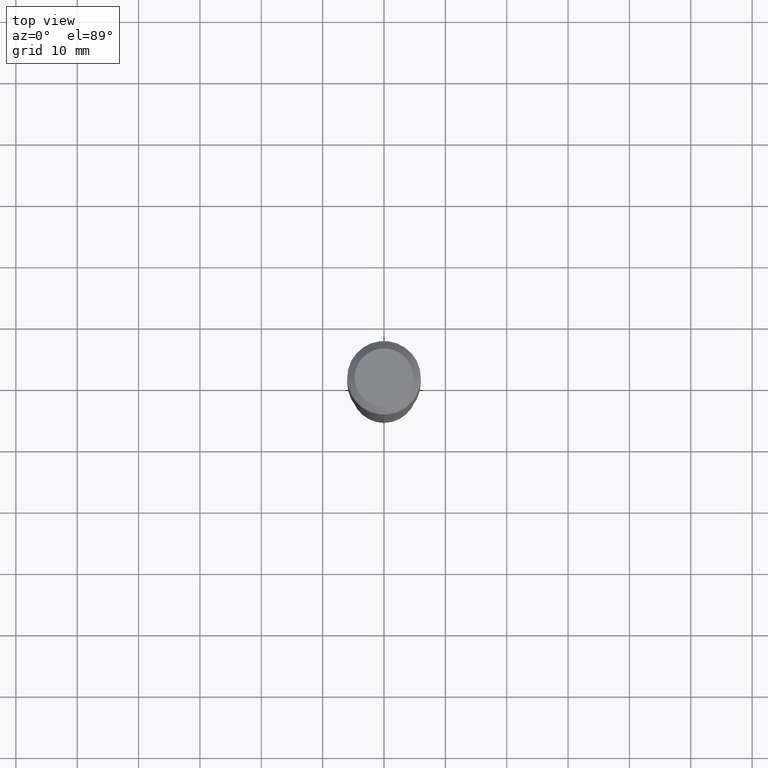
[diagram: clean part render]
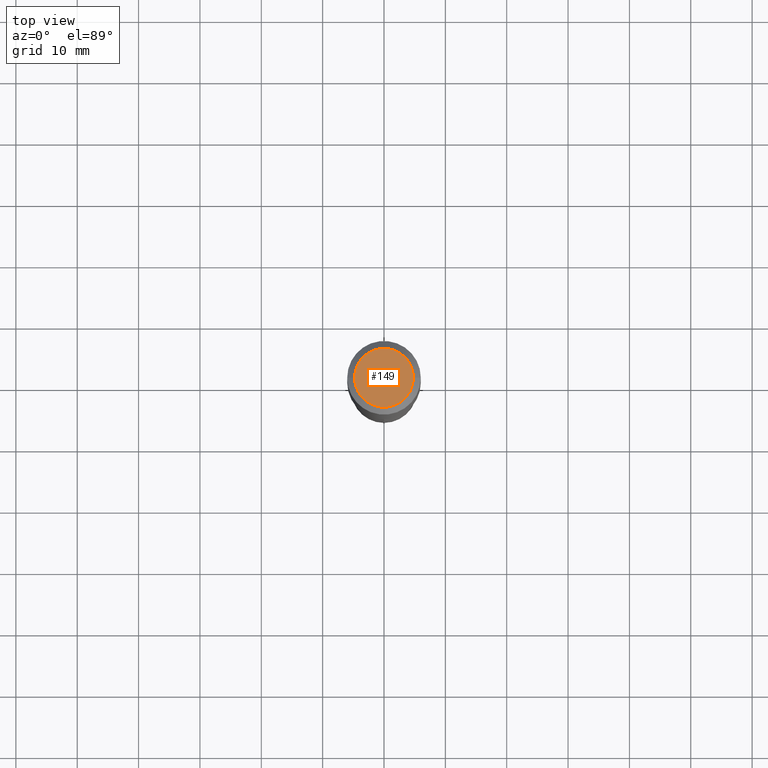
[diagram: same view with one face highlighted and labeled with its STEP entity id]
A machine part, top view. The second image highlights one B-rep face of the part: STEP entity #149.
In plain terms, the highlighted planar face has unit normal (0, -0, -1).
Its self-contained STEP definition (entity closure, byte-faithful):
#27 = EDGE_CURVE ( 'NONE', #330, #327, #358, .T. ) ;
#40 = CARTESIAN_POINT ( 'NONE',  ( -9.427742298522546243E-47, 1.346031739168365344E-32, 3.855188123715862256E-18 ) ) ;
#73 = DIRECTION ( 'NONE',  ( 1.000000000000000000, -6.982962677686266711E-15, 4.876185090822587894E-29 ) ) ;
#74 = ORIENTED_EDGE ( 'NONE', *, *, #456, .T. ) ;
#75 = DIRECTION ( 'NONE',  ( 2.438088387897960049E-29, -3.491481338843145188E-15, -1.000000000000000000 ) ) ;
#86 = CARTESIAN_POINT ( 'NONE',  ( 0.1889600000000000168, -1.540873453589747738E-15, 3.855188123725863225E-18 ) ) ;
#149 = ADVANCED_FACE ( 'NONE', ( #461 ), #190, .F. ) ;
#158 = DIRECTION ( 'NONE',  ( -1.000000000000000000, 6.982962677686265922E-15, -4.876176775795935793E-29 ) ) ;
#174 = EDGE_LOOP ( 'NONE', ( #74, #298 ) ) ;
#190 = PLANE ( 'NONE',  #203 ) ;
#203 = AXIS2_PLACEMENT_3D ( 'NONE', #270, #75, #158 ) ;
#208 = CARTESIAN_POINT ( 'NONE',  ( -0.1889600000000000168, 1.401969416799070942E-15, 3.855188123706346622E-18 ) ) ;
#227 = DIRECTION ( 'NONE',  ( -2.445468806185136597E-29, 3.491481338843145583E-15, 1.000000000000000000 ) ) ;
#231 = DIRECTION ( 'NONE',  ( 1.000000000000000000, -6.982962677686266711E-15, 4.876185090822587894E-29 ) ) ;
#270 = CARTESIAN_POINT ( 'NONE',  ( -4.713871149261273121E-47, 6.730158695841826722E-33, 1.927594061857931128E-18 ) ) ;
#279 = AXIS2_PLACEMENT_3D ( 'NONE', #40, #227, #231 ) ;
#298 = ORIENTED_EDGE ( 'NONE', *, *, #27, .T. ) ;
#321 = CIRCLE ( 'NONE', #387, 0.1889600000000000168 ) ;
#327 = VERTEX_POINT ( 'NONE', #208 ) ;
#330 = VERTEX_POINT ( 'NONE', #86 ) ;
#337 = DIRECTION ( 'NONE',  ( -2.445468806185136597E-29, 3.491481338843145583E-15, 1.000000000000000000 ) ) ;
#358 = CIRCLE ( 'NONE', #279, 0.1889600000000000168 ) ;
#387 = AXIS2_PLACEMENT_3D ( 'NONE', #414, #337, #73 ) ;
#414 = CARTESIAN_POINT ( 'NONE',  ( -9.427742298522546243E-47, 1.346031739168365344E-32, 3.855188123715862256E-18 ) ) ;
#456 = EDGE_CURVE ( 'NONE', #327, #330, #321, .T. ) ;
#461 = FACE_OUTER_BOUND ( 'NONE', #174, .T. ) ;